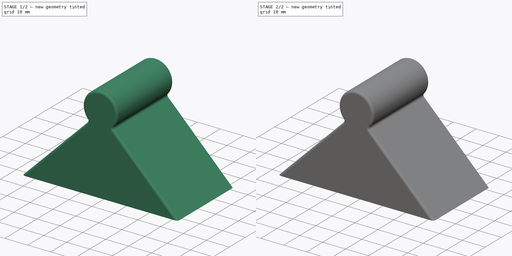
[diagram: build sequence overview — one tinted view per stage of 2, left to right]
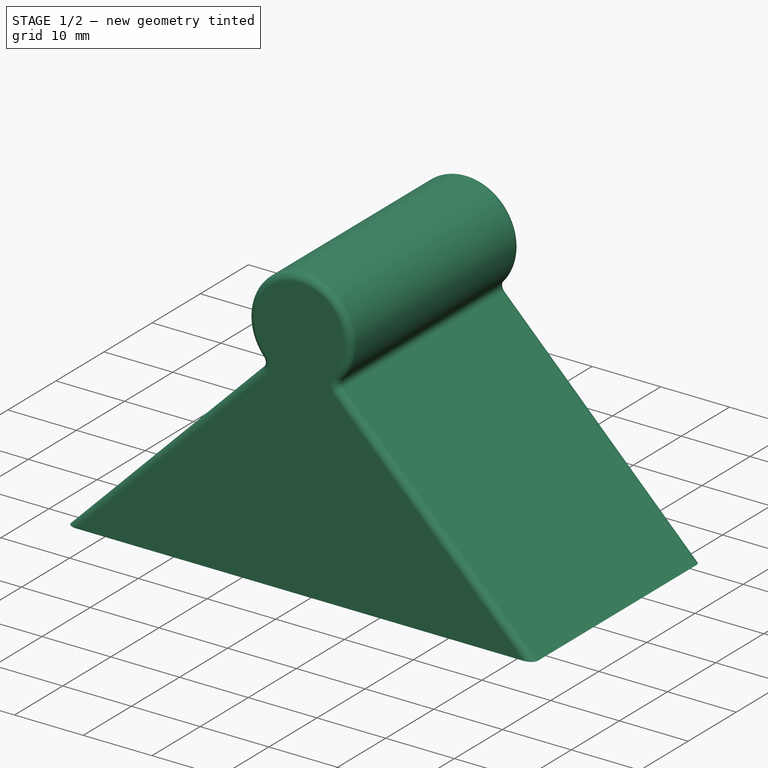
[diagram: stage 1 of 2 — iso view after this stage's code; geometry added in this stage tinted green]
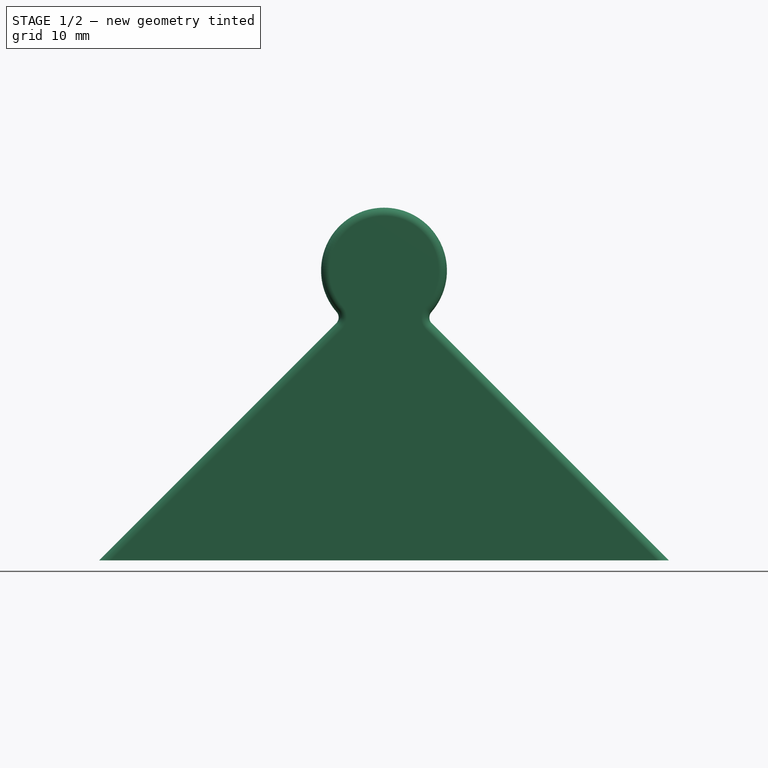
[diagram: stage 1 of 2 — front view after this stage's code; geometry added in this stage tinted green]
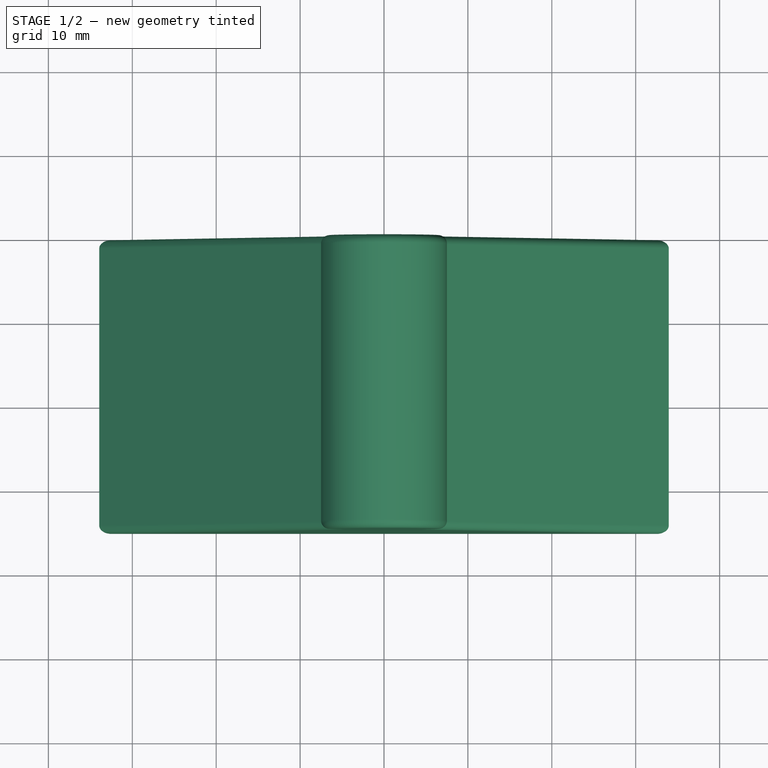
[diagram: stage 1 of 2 — top view after this stage's code; geometry added in this stage tinted green]
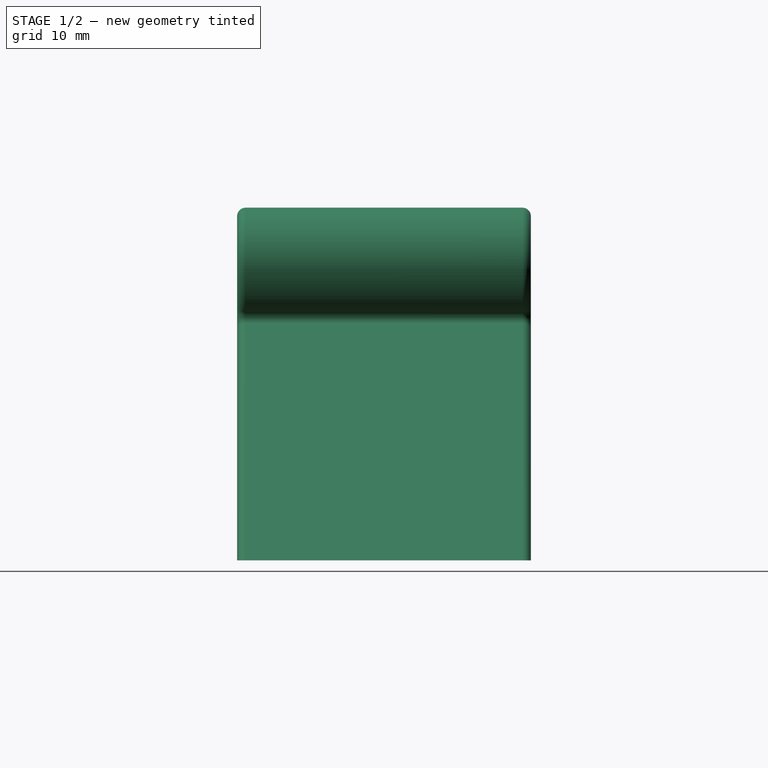
[diagram: stage 1 of 2 — right view after this stage's code; geometry added in this stage tinted green]
FCSTD DOCUMENT  (FreeCAD 0.20R29177 (Git))
Label: BackGardenDoorBump
License: All rights reserved
LicenseURL: http://en.wikipedia.org/wiki/All_rights_reserved
objects: Sketcher::SketchObject×4, PartDesign::Pocket×2, PartDesign::Pad×1, PartDesign::Fillet×1, PartDesign::Body×1
note: 13 computed .brp shape members not serialized (recipe doc carries the construction recipe); baked Part::Feature solids carry a one-line shape summary decoded from their .brp

FEATURE [Sketcher::SketchObject] Sketch
  FullyConstrained = true
  MapMode = 5
  Placement = pos=(0,0,0) rot=(1,0,0;1.5708rad)
  Support = -> [XZ_Plane]
  sketch-geometry (9):
    g0: LineSegment StartX=-5 StartY=28.9411 StartZ=0 EndX=5 EndY=28.9411 EndZ=0
    g1: LineSegment StartX=-7.5 StartY=1.42e-14 StartZ=0 EndX=-33.9411 EndY=1.42e-14 EndZ=0
    g2: LineSegment StartX=33.9411 StartY=1.18e-14 StartZ=0 EndX=7.5 EndY=1.78e-14 EndZ=0
    g3: LineSegment StartX=7.5 StartY=1.78e-14 StartZ=0 EndX=-7.5 EndY=1.42e-14 EndZ=0
    g4: LineSegment StartX=-33.9411 StartY=1.42e-14 StartZ=0 EndX=7.1e-15 EndY=33.9411 EndZ=0
    g5: LineSegment StartX=7.1e-15 StartY=33.9411 StartZ=0 EndX=33.9411 EndY=1.42e-14 EndZ=0
    g6: ArcOfCircle CenterX=5.115e-13 CenterY=34.5313 CenterZ=0 NormalX=0 NormalY=0 NormalZ=1 AngleXU=0 Radius=7.5 StartAngle=5.44212 EndAngle=10.2658
    g7: LineSegment StartX=-7.5 StartY=1.42e-14 StartZ=0 EndX=-9e-16 EndY=7.5 EndZ=0
    g8: LineSegment StartX=-9e-16 StartY=7.5 StartZ=0 EndX=7.5 EndY=1.78e-14 EndZ=0
  constraints (25):
    c: PointOnObject(g1,g-1)
    c: PointOnObject(g2,g-1)
    c: Coincident(g3,g1)
    c: Coincident(g2,g3)
    c: Symmetric(g1,g2,g-2)
    c: Equal(g1,g2)
    c: Horizontal(g1)
    c: Coincident(g4,g1)
    c: PointOnObject(g4,g-2)
    c: Coincident(g5,g4)
    c: Coincident(g5,g2)
    c: PointOnObject(g0,g5)
    c: Distance(g4) = 48
    c: Coincident(g6,g0)
    c: Coincident(g6,g0)
    c: DistanceX(g3,g3) = 15
    c: Radius(g6) = 7.5
    c: Symmetric(g6,g6,g-2)
    c: DistanceX(g0,g0) = 10
    c: Perpendicular(g4,g5)
    c: Coincident(g7,g1)
    c: PointOnObject(g7,g-2)
    c: Coincident(g8,g7)
    c: Coincident(g8,g2)
    c: Perpendicular(g7,g8)
FEATURE [Sketcher::SketchObject] Sketch001
  ExternalGeometry = -> [Sketch]
  FullyConstrained = true
  MapMode = 5
  Placement = pos=(0,0,0) rot=(1,0,0;1.5708rad)
  Support = -> [XZ_Plane]
  sketch-geometry (4):
    g0: ArcOfCircle CenterX=5.123e-13 CenterY=34.5313 CenterZ=0 NormalX=0 NormalY=0 NormalZ=1 AngleXU=0 Radius=7.5 StartAngle=5.44212 EndAngle=10.2658
    g1: LineSegment StartX=-5 StartY=28.9411 StartZ=0 EndX=-33.9411 EndY=-8.85372e-11 EndZ=0
    g2: LineSegment StartX=-33.9411 StartY=-8.85372e-11 StartZ=0 EndX=33.9411 EndY=5.26e-14 EndZ=0
    g3: LineSegment StartX=33.9411 StartY=5.26e-14 StartZ=0 EndX=5 EndY=28.9411 EndZ=0
  constraints (9):
    c: Coincident(g1,g0)
    c: Coincident(g2,g1)
    c: Coincident(g3,g0)
    c: Coincident(g0,g-3)
    c: Coincident(g0,g-3)
    c: Equal(g0,g-3)
    c: Coincident(g1,g-4)
    c: Coincident(g3,g-5)
    c: Coincident(g2,g3)
FEATURE [PartDesign::Pad] Pad
  Direction = (0,-1,-2e-16)
  Length = 35
  Length2 = 10
  Placement = pos=(0,0,0) rot=(1,0,0;1.5708rad)
  Profile = -> Sketch001
  ReferenceAxis = -> Sketch001 [N_Axis]
  Type = 0
FEATURE [PartDesign::Fillet] Fillet
  Base = -> Pad [Edge4,Edge3,Edge11,Edge1,Edge12,Edge7,Edge6,Edge2]
  BaseFeature = -> Pad
  Placement = pos=(0,0,0) rot=(1,0,0;1.5708rad)
  Radius = 1
  SupportTransform = false
  UseAllEdges = false
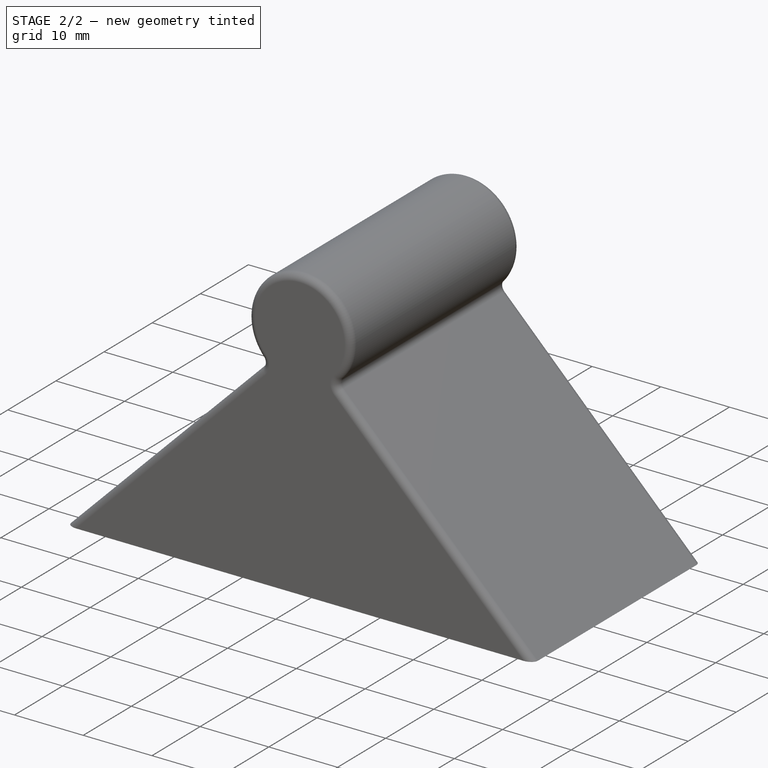
[diagram: stage 2 of 2 — iso view after this stage's code; geometry added in this stage tinted green]
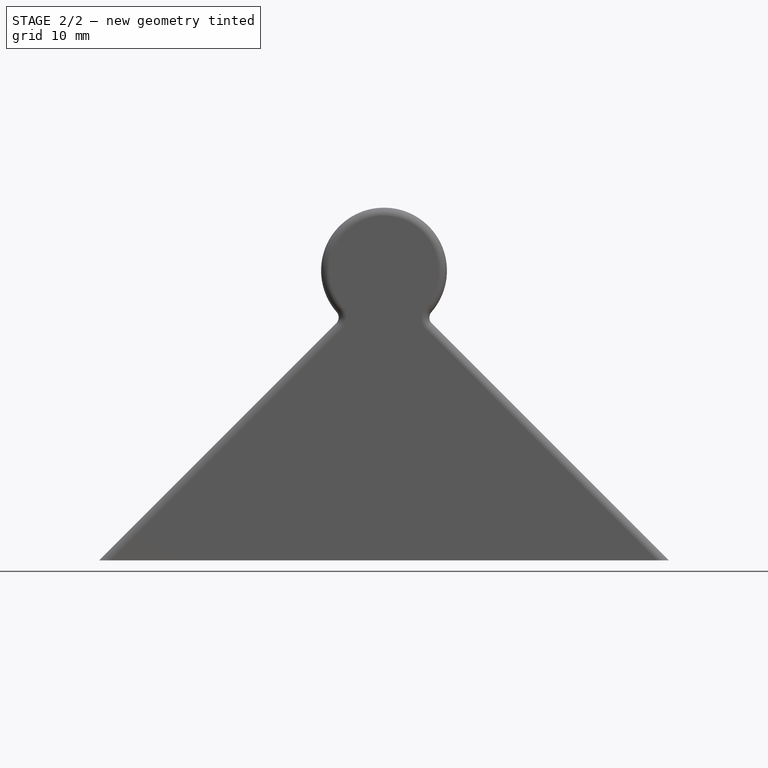
[diagram: stage 2 of 2 — front view after this stage's code; geometry added in this stage tinted green]
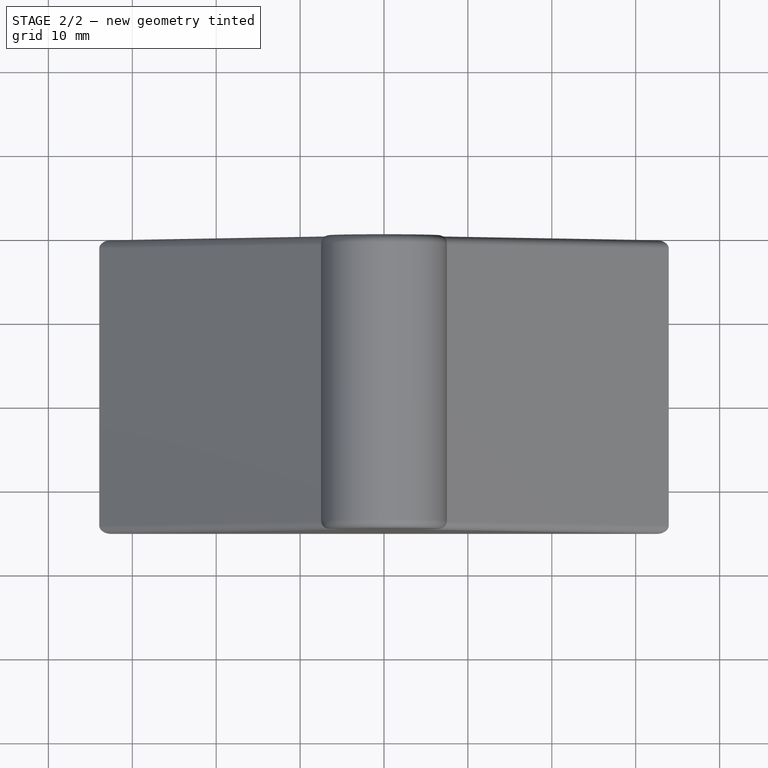
[diagram: stage 2 of 2 — top view after this stage's code; geometry added in this stage tinted green]
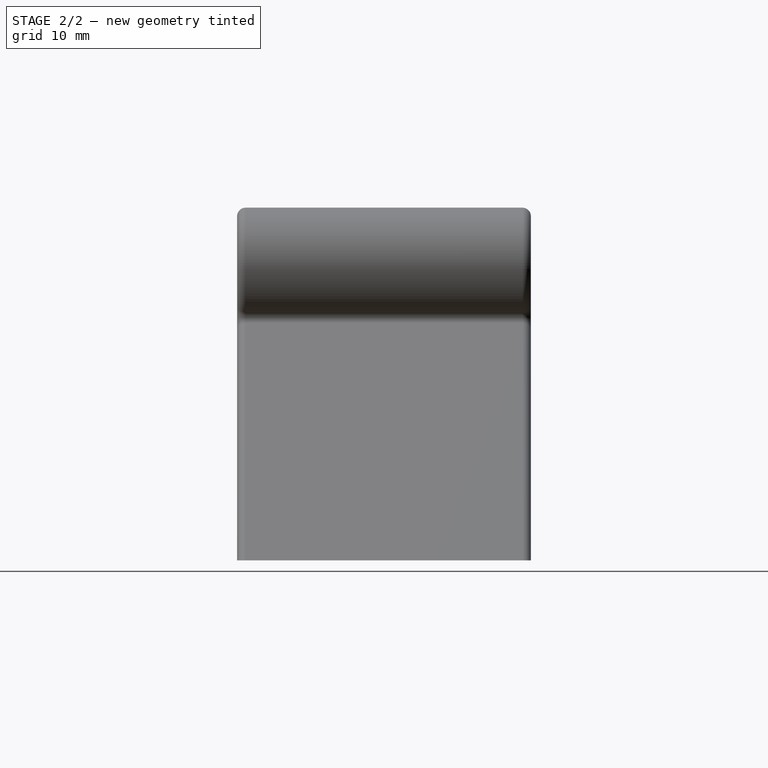
[diagram: stage 2 of 2 — right view after this stage's code; geometry added in this stage tinted green]
FEATURE [Sketcher::SketchObject] Sketch002
  AttachmentOffset = pos=(0,0,2) rot=(0,0,1;0rad)
  ExternalGeometry = -> [Sketch]
  FullyConstrained = true
  MapMode = 5
  Placement = pos=(0,-2,-4e-16) rot=(1,0,0;1.5708rad)
  Support = -> [XZ_Plane]
  sketch-geometry (5):
    g0: LineSegment StartX=2.3e-15 StartY=31.1127 StartZ=0 EndX=-31.1127 EndY=1.07e-14 EndZ=0
    g1: LineSegment StartX=-31.1127 StartY=1.01e-14 StartZ=0 EndX=31.1127 EndY=1.01e-14 EndZ=0
    g2: LineSegment StartX=31.1127 StartY=1.01e-14 StartZ=0 EndX=3.6e-15 EndY=31.1127 EndZ=0
    g3: LineSegment StartX=2.3e-15 StartY=31.1127 StartZ=0 EndX=1.41421 EndY=32.5269 EndZ=0
    g4: LineSegment StartX=2.3e-15 StartY=31.1127 StartZ=0 EndX=-1.41421 EndY=32.5269 EndZ=0
  constraints (15):
    c: Coincident(g0,g1)
    c: Horizontal(g1)
    c: Coincident(g1,g2)
    c: Coincident(g2,g0)
    c: Coincident(g3,g0)
    c: Coincident(g4,g0)
    c: Perpendicular(g2,g3)
    c: Perpendicular(g0,g4)
    c: Equal(g3,g4)
    c: Parallel(g0,g-3)
    c: Parallel(g2,g-4)
    c: PointOnObject(g4,g-3)
    c: PointOnObject(g3,g-4)
    c: Distance(g4,g-4) = 2
    c: PointOnObject(g0,g-5)
FEATURE [PartDesign::Pocket] Pocket
  BaseFeature = -> Fillet
  Direction = (0,1,2e-16)
  Length = 31
  Length2 = 5
  Placement = pos=(0,0,0) rot=(1,0,0;1.5708rad)
  Profile = -> Sketch002
  ReferenceAxis = -> Sketch002 [N_Axis]
  Reversed = true
  Type = 0
FEATURE [Sketcher::SketchObject] Sketch003
  ExternalGeometry = -> [Sketch]
  FullyConstrained = true
  MapMode = 5
  Placement = pos=(0,0,0) rot=(1,0,0;1.5708rad)
  Support = -> [XZ_Plane]
  sketch-geometry (3):
    g0: LineSegment StartX=-7.5 StartY=0 StartZ=0 EndX=4.7509e-12 EndY=7.5 EndZ=0
    g1: LineSegment StartX=4.7509e-12 StartY=7.5 StartZ=0 EndX=7.5 EndY=5.578e-13 EndZ=0
    g2: LineSegment StartX=7.5 StartY=5.578e-13 StartZ=0 EndX=-7.5 EndY=0 EndZ=0
  constraints (6):
    c: Coincident(g-3,g0)
    c: Coincident(g0,g-4)
    c: Coincident(g0,g1)
    c: Coincident(g1,g-4)
    c: Coincident(g1,g2)
    c: Coincident(g2,g0)
FEATURE [PartDesign::Pocket] Pocket001
  BaseFeature = -> Pocket
  Direction = (0,1,2e-16)
  Length = 2
  Length2 = 5
  Placement = pos=(0,0,0) rot=(1,0,0;1.5708rad)
  Profile = -> Sketch003
  ReferenceAxis = -> Sketch003 [N_Axis]
  Reversed = true
  Type = 0
FEATURE [PartDesign::Body] Body
  Group = -> [Sketch,Sketch001,Pad,Fillet,Sketch002,Pocket,Sketch003,Pocket001]
  Origin = -> Origin
  Tip = -> Pocket001
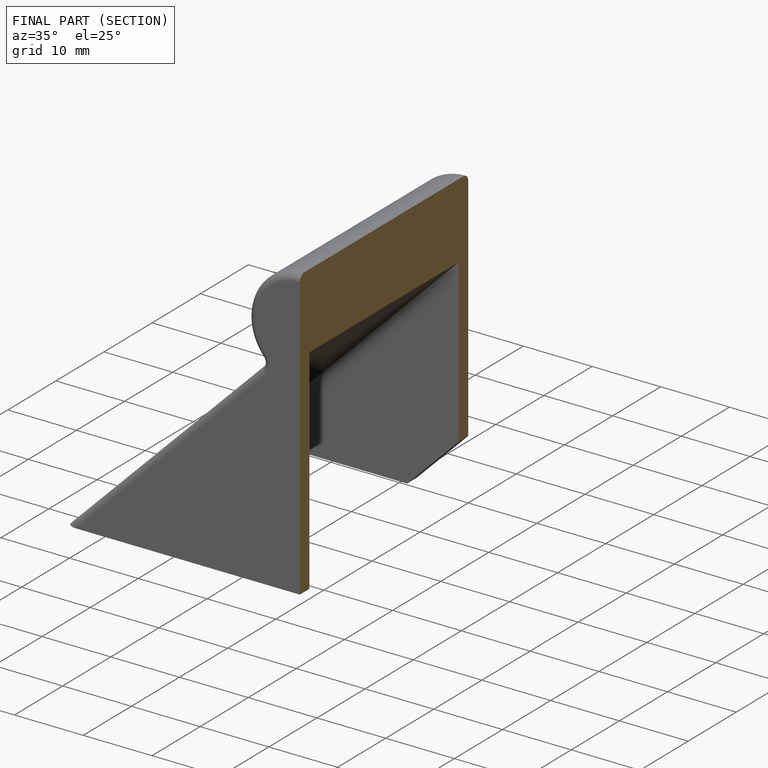
[diagram: finished part — half-section view (interior)]
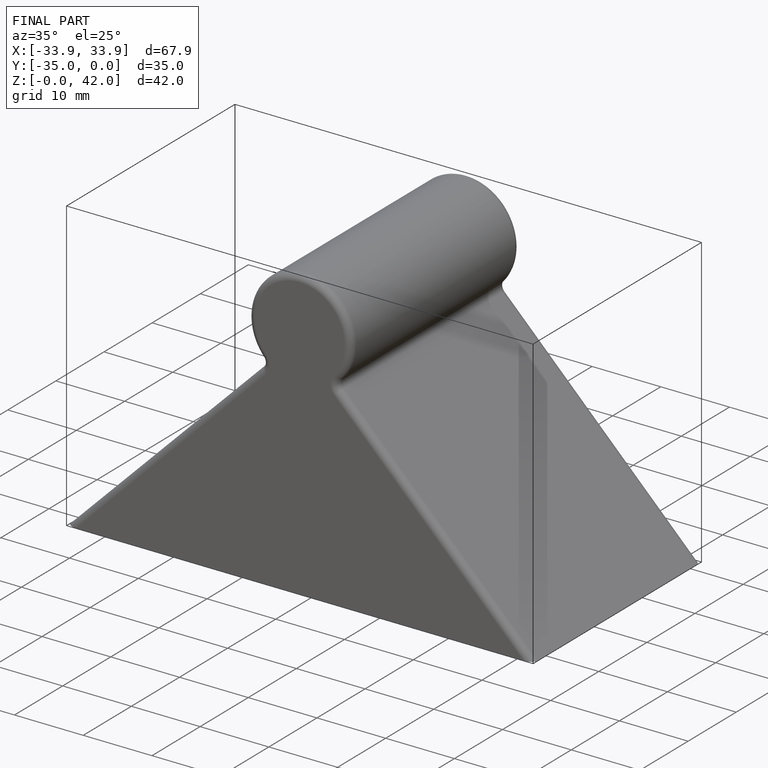
[diagram: finished part — iso view with bounding-box wireframe]
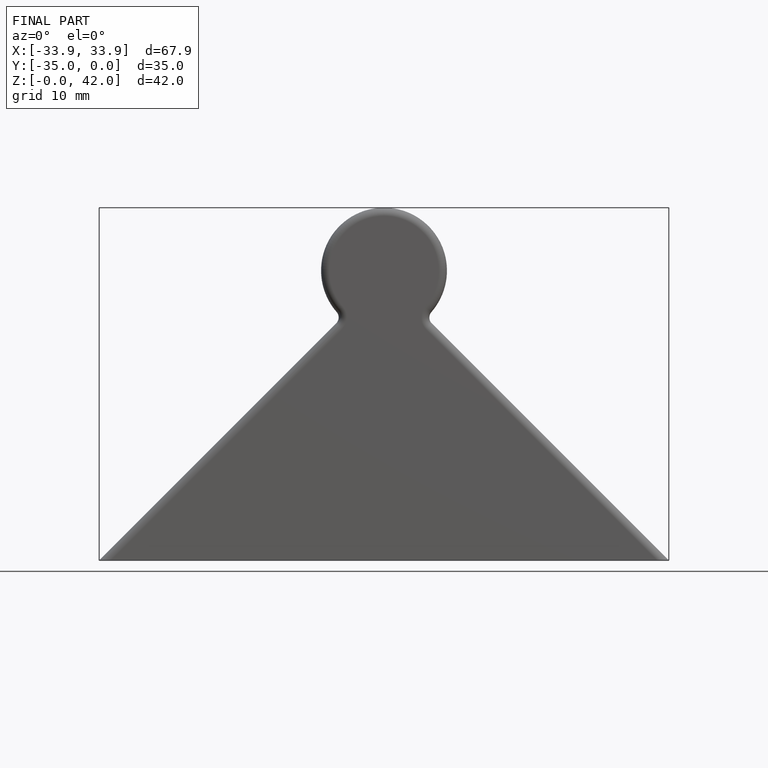
[diagram: finished part — front view with bounding-box wireframe]
